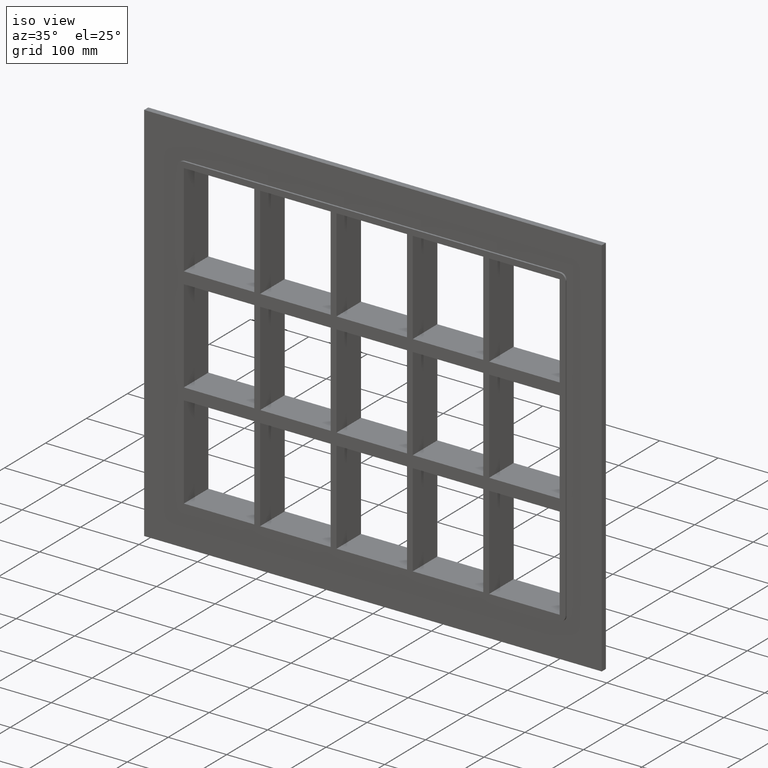
[diagram: clean part render]
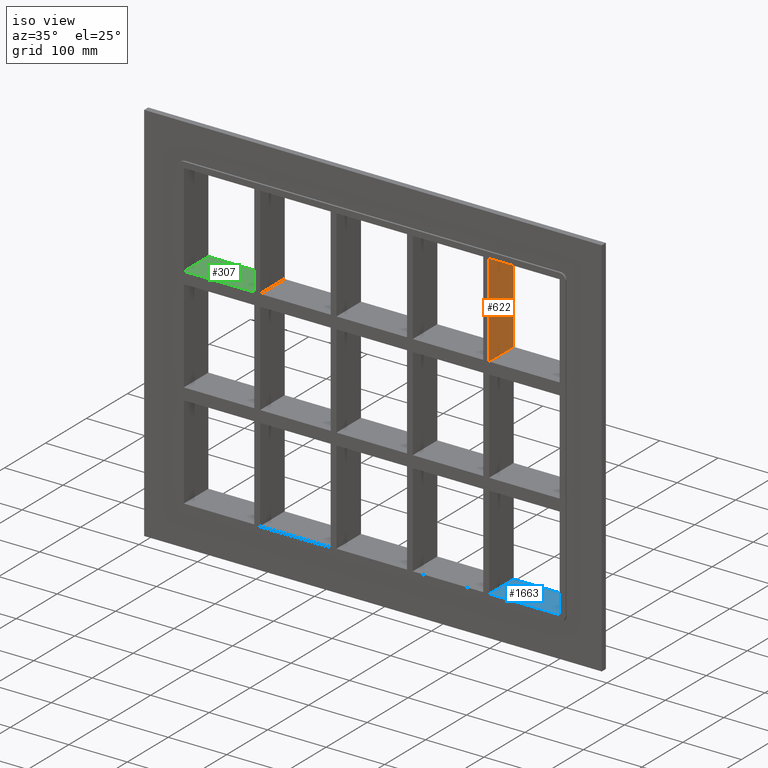
[diagram: same view with three faces highlighted in distinct colors, each labeled with its STEP entity id]
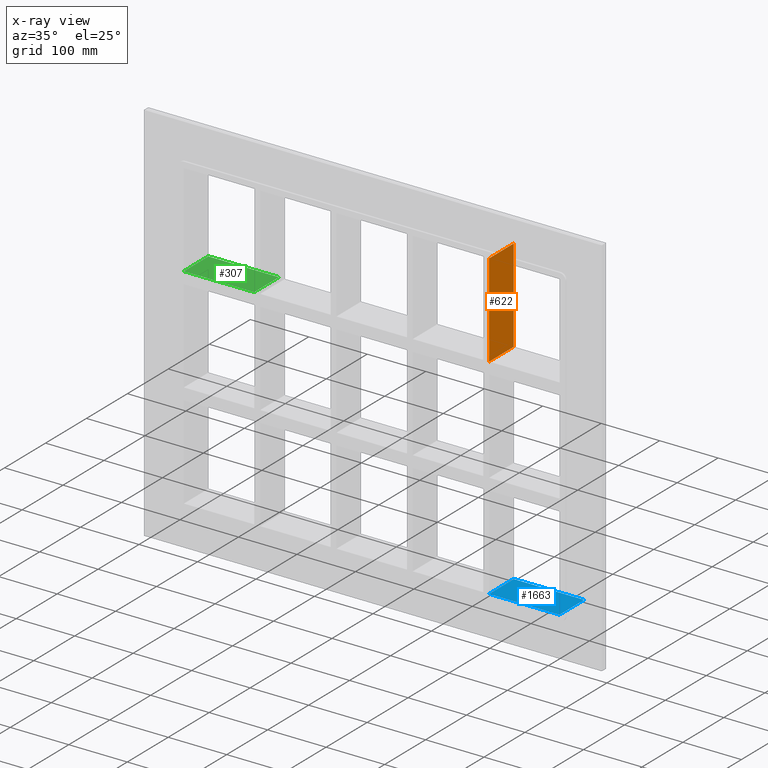
[diagram: x-ray of the same camera — body ghosted, the three highlighted faces saturated]
A machine part, iso view with three faces highlighted in distinct colors.
The next image is the same camera in x-ray (body ghosted, the three faces saturated) — at least one of them is partly hidden behind the body in this view.
Their STEP definitions:

[orange] entity #622 — the highlighted planar face has unit normal (1, 0, 0).
#313=CARTESIAN_POINT('',(200.74999999999278,-3.0,99.750000000000085));
#314=VERTEX_POINT('',#313);
#315=CARTESIAN_POINT('',(200.74999999999278,57.0,99.750000000000085));
#316=VERTEX_POINT('',#315);
#317=CARTESIAN_POINT('',(200.74999999999278,-3.0,99.750000000000085));
#318=DIRECTION('',(0.0,1.0,0.0));
#319=VECTOR('',#318,60.0);
#320=LINE('',#317,#319);
#321=EDGE_CURVE('',#314,#316,#320,.T.);
#592=CARTESIAN_POINT('',(200.74999999999278,-3.0,259.25));
#593=DIRECTION('',(1.0,0.0,0.0));
#594=DIRECTION('',(0.0,0.0,-1.0));
#595=AXIS2_PLACEMENT_3D('',#592,#593,#594);
#596=PLANE('',#595);
#597=ORIENTED_EDGE('',*,*,#321,.T.);
#598=CARTESIAN_POINT('',(200.74999999999278,57.0,259.25));
#599=VERTEX_POINT('',#598);
#600=CARTESIAN_POINT('',(200.74999999999278,57.0,259.25));
#601=DIRECTION('',(0.0,0.0,-1.0));
#602=VECTOR('',#601,159.49999999999989);
#603=LINE('',#600,#602);
#604=EDGE_CURVE('',#599,#316,#603,.T.);
#605=ORIENTED_EDGE('',*,*,#604,.F.);
#606=CARTESIAN_POINT('',(200.74999999999278,-3.0,259.25));
#607=VERTEX_POINT('',#606);
#608=CARTESIAN_POINT('',(200.74999999999278,-3.0,259.25));
#609=DIRECTION('',(0.0,1.0,0.0));
#610=VECTOR('',#609,60.000000000000007);
#611=LINE('',#608,#610);
#612=EDGE_CURVE('',#607,#599,#611,.T.);
#613=ORIENTED_EDGE('',*,*,#612,.F.);
#614=CARTESIAN_POINT('',(200.74999999999278,-3.0,259.25));
#615=DIRECTION('',(0.0,0.0,-1.0));
#616=VECTOR('',#615,159.49999999999989);
#617=LINE('',#614,#616);
#618=EDGE_CURVE('',#607,#314,#617,.T.);
#619=ORIENTED_EDGE('',*,*,#618,.T.);
#620=EDGE_LOOP('',(#597,#605,#613,#619));
#621=FACE_OUTER_BOUND('',#620,.T.);
#622=ADVANCED_FACE('',(#621),#596,.T.);

[blue] entity #1663 — the highlighted planar face has unit normal (0, 0, -1).
#1217=CARTESIAN_POINT('',(200.74999999999278,57.0,-259.24999999998408));
#1218=VERTEX_POINT('',#1217);
#1219=CARTESIAN_POINT('',(321.25,57.0,-259.25000000000006));
#1220=VERTEX_POINT('',#1219);
#1221=CARTESIAN_POINT('',(200.74999999999278,57.0,-259.25000000000006));
#1222=DIRECTION('',(1.0,0.0,0.0));
#1223=VECTOR('',#1222,120.50000000000722);
#1224=LINE('',#1221,#1223);
#1225=EDGE_CURVE('',#1218,#1220,#1224,.T.);
#1344=CARTESIAN_POINT('',(200.74999999999278,-3.0,-259.24999999998408));
#1345=VERTEX_POINT('',#1344);
#1352=CARTESIAN_POINT('',(200.74999999999278,57.000000000000007,-259.25000000000006));
#1353=DIRECTION('',(0.0,-1.0,0.0));
#1354=VECTOR('',#1353,60.000000000000007);
#1355=LINE('',#1352,#1354);
#1356=EDGE_CURVE('',#1218,#1345,#1355,.T.);
#1640=CARTESIAN_POINT('',(321.25,0.0,-259.25000000000006));
#1641=DIRECTION('',(0.0,0.0,-1.0));
#1642=DIRECTION('',(-1.0,0.0,0.0));
#1643=AXIS2_PLACEMENT_3D('',#1640,#1641,#1642);
#1644=PLANE('',#1643);
#1645=ORIENTED_EDGE('',*,*,#1356,.T.);
#1646=CARTESIAN_POINT('',(321.25,-3.0,-259.25000000000006));
#1647=VERTEX_POINT('',#1646);
#1648=CARTESIAN_POINT('',(321.25,-3.0,-259.25000000000006));
#1649=DIRECTION('',(-1.0,0.0,0.0));
#1650=VECTOR('',#1649,120.50000000000722);
#1651=LINE('',#1648,#1650);
#1652=EDGE_CURVE('',#1647,#1345,#1651,.T.);
#1653=ORIENTED_EDGE('',*,*,#1652,.F.);
#1654=CARTESIAN_POINT('',(321.25,57.0,-259.25000000000006));
#1655=DIRECTION('',(0.0,-1.0,0.0));
#1656=VECTOR('',#1655,60.0);
#1657=LINE('',#1654,#1656);
#1658=EDGE_CURVE('',#1220,#1647,#1657,.T.);
#1659=ORIENTED_EDGE('',*,*,#1658,.F.);
#1660=ORIENTED_EDGE('',*,*,#1225,.F.);
#1661=EDGE_LOOP('',(#1645,#1653,#1659,#1660));
#1662=FACE_OUTER_BOUND('',#1661,.T.);
#1663=ADVANCED_FACE('',(#1662),#1644,.F.);

[green] entity #307 — the highlighted planar face has unit normal (0, 0, 1).
#268=CARTESIAN_POINT('',(-321.24999999999972,-3.0,99.750000000000085));
#269=DIRECTION('',(0.0,0.0,1.0));
#270=DIRECTION('',(1.0,0.0,0.0));
#271=AXIS2_PLACEMENT_3D('',#268,#269,#270);
#272=PLANE('',#271);
#273=CARTESIAN_POINT('',(-200.75000000000134,57.0,99.750000000000085));
#274=VERTEX_POINT('',#273);
#275=CARTESIAN_POINT('',(-200.75000000000134,-3.0,99.750000000000085));
#276=VERTEX_POINT('',#275);
#277=CARTESIAN_POINT('',(-200.75000000000136,57.0,99.750000000000085));
#278=DIRECTION('',(0.0,-1.0,0.0));
#279=VECTOR('',#278,60.0);
#280=LINE('',#277,#279);
#281=EDGE_CURVE('',#274,#276,#280,.T.);
#282=ORIENTED_EDGE('',*,*,#281,.F.);
#283=CARTESIAN_POINT('',(-321.24999999999972,57.0,99.750000000000085));
#284=VERTEX_POINT('',#283);
#285=CARTESIAN_POINT('',(-321.24999999999972,57.0,99.750000000000085));
#286=DIRECTION('',(1.0,0.0,0.0));
#287=VECTOR('',#286,120.49999999999838);
#288=LINE('',#285,#287);
#289=EDGE_CURVE('',#284,#274,#288,.T.);
#290=ORIENTED_EDGE('',*,*,#289,.F.);
#291=CARTESIAN_POINT('',(-321.24999999999972,-3.0,99.750000000000085));
#292=VERTEX_POINT('',#291);
#293=CARTESIAN_POINT('',(-321.25,-3.0,99.750000000000085));
#294=DIRECTION('',(0.0,1.0,0.0));
#295=VECTOR('',#294,60.000000000000007);
#296=LINE('',#293,#295);
#297=EDGE_CURVE('',#292,#284,#296,.T.);
#298=ORIENTED_EDGE('',*,*,#297,.F.);
#299=CARTESIAN_POINT('',(-321.24999999999972,-3.0,99.750000000000085));
#300=DIRECTION('',(1.0,0.0,0.0));
#301=VECTOR('',#300,120.49999999999838);
#302=LINE('',#299,#301);
#303=EDGE_CURVE('',#292,#276,#302,.T.);
#304=ORIENTED_EDGE('',*,*,#303,.T.);
#305=EDGE_LOOP('',(#282,#290,#298,#304));
#306=FACE_OUTER_BOUND('',#305,.T.);
#307=ADVANCED_FACE('',(#306),#272,.T.);